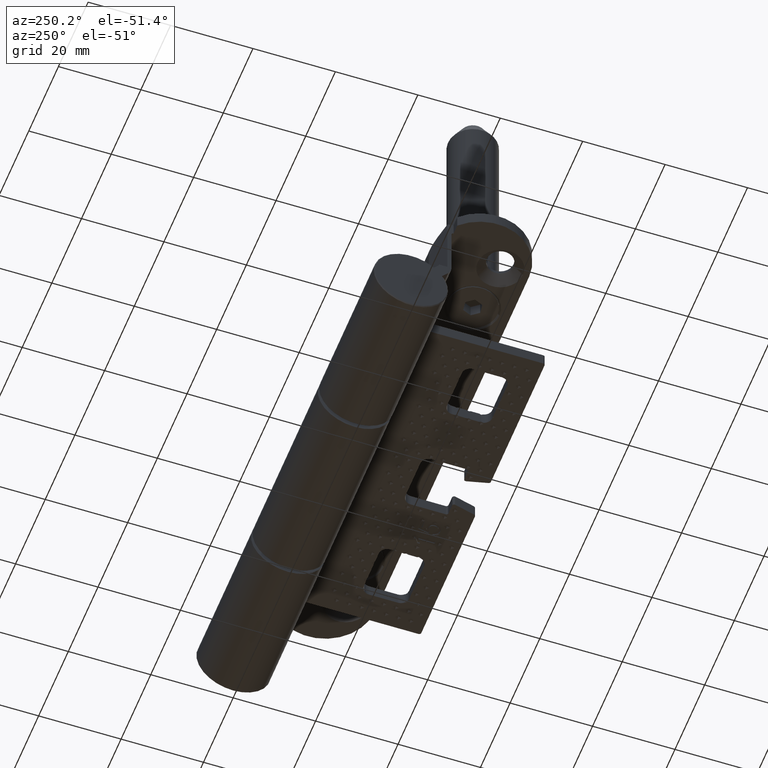
[diagram: clean part render]
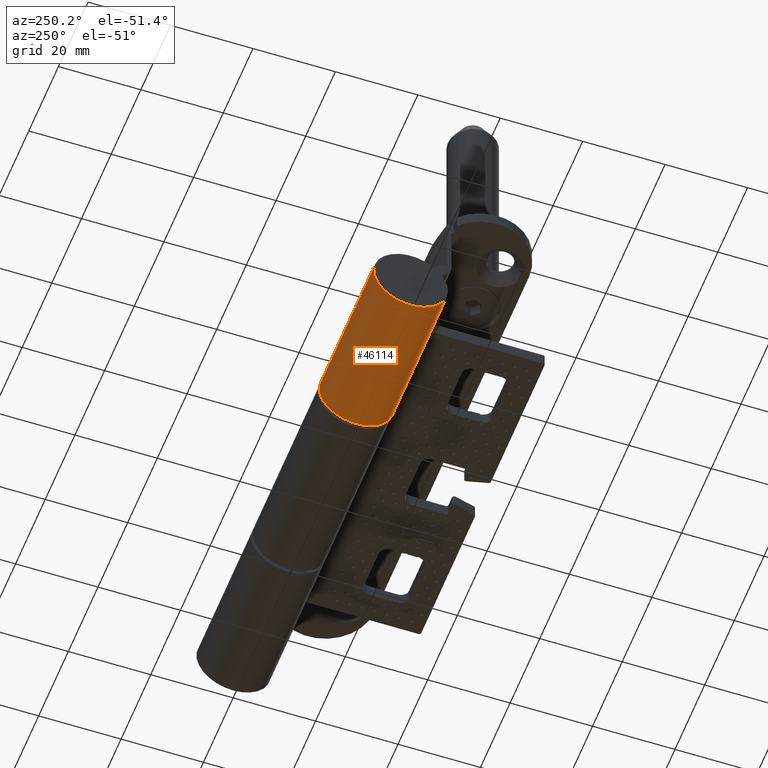
[diagram: same view with one face highlighted and labeled with its STEP entity id]
A machine part, auxiliary view. The second image highlights one B-rep face of the part: STEP entity #46114.
In plain terms, the highlighted cylindrical surface (partial cylindrical patch) has radius 9 mm, axis along (1, -0, 0).
Its self-contained STEP definition (entity closure, byte-faithful):
#1369 = CARTESIAN_POINT ( 'NONE',  ( 25.50000000000000355, 6.938893903907228378E-15, 9.000000000000005329 ) ) ;
#2258 = CARTESIAN_POINT ( 'NONE',  ( 25.50000000000000355, 8.041076023139847866E-15, -9.000000000000031974 ) ) ;
#4644 = VERTEX_POINT ( 'NONE', #35066 ) ;
#4944 = DIRECTION ( 'NONE',  ( 3.451266460341919204E-31, 4.930380657631312836E-32, 1.000000000000000000 ) ) ;
#5843 = DIRECTION ( 'NONE',  ( -1.000000000000000000, -1.969277423625670529E-32, -6.286235338479937824E-31 ) ) ;
#5909 = ORIENTED_EDGE ( 'NONE', *, *, #33887, .F. ) ;
#9020 = CARTESIAN_POINT ( 'NONE',  ( 5.657611804631943341E-30, 8.041076023139824201E-15, -9.000000000000000000 ) ) ;
#9812 = AXIS2_PLACEMENT_3D ( 'NONE', #32996, #25540, #4944 ) ;
#10783 = EDGE_CURVE ( 'NONE', #43351, #18100, #30313, .T. ) ;
#12561 = CARTESIAN_POINT ( 'NONE',  ( 36.79999999999999716, 8.041076023139822623E-15, -8.999999999999998224 ) ) ;
#16685 = CARTESIAN_POINT ( 'NONE',  ( 25.50000000000000355, 6.938893903907228378E-15, -1.387778780781445676E-14 ) ) ;
#18100 = VERTEX_POINT ( 'NONE', #9020 ) ;
#18252 = CIRCLE ( 'NONE', #9812, 9.000000000000019540 ) ;
#18392 = DIRECTION ( 'NONE',  ( -1.000000000000000000, -1.969277423625670529E-32, -6.286235338479937824E-31 ) ) ;
#18562 = CIRCLE ( 'NONE', #38853, 9.000000000000017764 ) ;
#23049 = CARTESIAN_POINT ( 'NONE',  ( 36.79999999999999716, 0.000000000000000000, 0.000000000000000000 ) ) ;
#25540 = DIRECTION ( 'NONE',  ( -1.000000000000000000, -1.969277423625670256E-32, -6.286235338479937824E-31 ) ) ;
#25775 = VECTOR ( 'NONE', #5843, 1000.000000000000000 ) ;
#29128 = DIRECTION ( 'NONE',  ( 0.000000000000000000, 0.000000000000000000, 1.000000000000000000 ) ) ;
#30239 = DIRECTION ( 'NONE',  ( 0.000000000000000000, 4.930380657631312836E-32, 1.000000000000000000 ) ) ;
#30313 = LINE ( 'NONE', #2258, #41784 ) ;
#31716 = ORIENTED_EDGE ( 'NONE', *, *, #10783, .T. ) ;
#32806 = EDGE_LOOP ( 'NONE', ( #49801, #31716, #38875, #5909 ) ) ;
#32996 = CARTESIAN_POINT ( 'NONE',  ( 0.000000000000000000, 0.000000000000000000, 0.000000000000000000 ) ) ;
#33263 = CARTESIAN_POINT ( 'NONE',  ( 36.79999999999999716, 4.437342591868190530E-31, 9.000000000000017764 ) ) ;
#33887 = EDGE_CURVE ( 'NONE', #42992, #4644, #38136, .T. ) ;
#35066 = CARTESIAN_POINT ( 'NONE',  ( 3.106139814307733984E-30, 4.437342591868191405E-31, 9.000000000000019540 ) ) ;
#37877 = AXIS2_PLACEMENT_3D ( 'NONE', #16685, #44499, #29128 ) ;
#38136 = LINE ( 'NONE', #1369, #25775 ) ;
#38853 = AXIS2_PLACEMENT_3D ( 'NONE', #23049, #42672, #30239 ) ;
#38875 = ORIENTED_EDGE ( 'NONE', *, *, #41864, .F. ) ;
#40270 = FACE_OUTER_BOUND ( 'NONE', #32806, .T. ) ;
#41784 = VECTOR ( 'NONE', #18392, 1000.000000000000000 ) ;
#41864 = EDGE_CURVE ( 'NONE', #4644, #18100, #18252, .T. ) ;
#42672 = DIRECTION ( 'NONE',  ( -1.000000000000000000, -1.969277423625670256E-32, -6.286235338479937824E-31 ) ) ;
#42992 = VERTEX_POINT ( 'NONE', #33263 ) ;
#43351 = VERTEX_POINT ( 'NONE', #12561 ) ;
#44216 = CYLINDRICAL_SURFACE ( 'NONE', #37877, 9.000000000000017764 ) ;
#44499 = DIRECTION ( 'NONE',  ( -1.000000000000000000, -1.969277423625670256E-32, -6.286235338479937824E-31 ) ) ;
#46114 = ADVANCED_FACE ( 'NONE', ( #40270 ), #44216, .T. ) ;
#48659 = EDGE_CURVE ( 'NONE', #42992, #43351, #18562, .T. ) ;
#49801 = ORIENTED_EDGE ( 'NONE', *, *, #48659, .T. ) ;